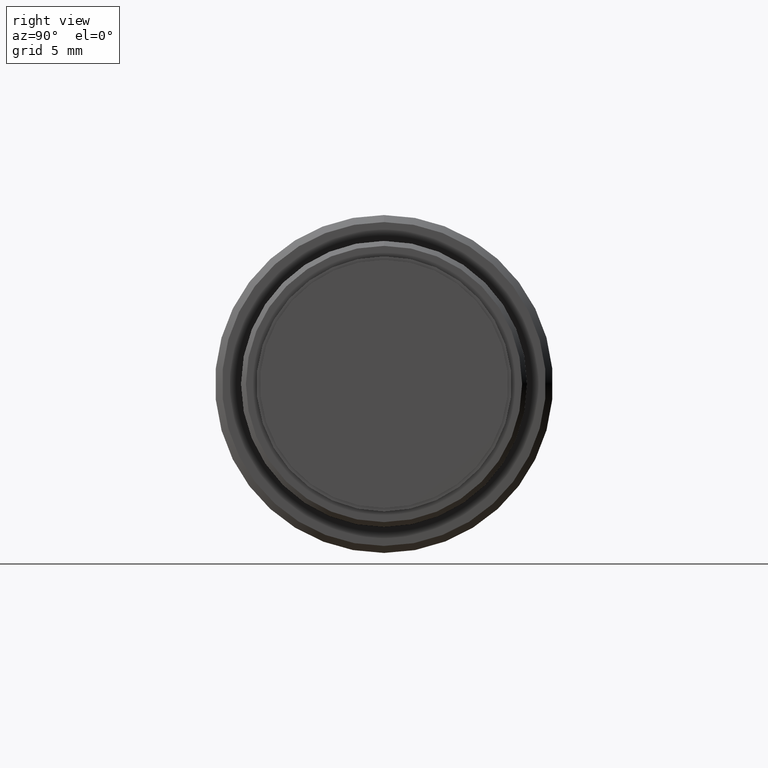
[diagram: clean part render]
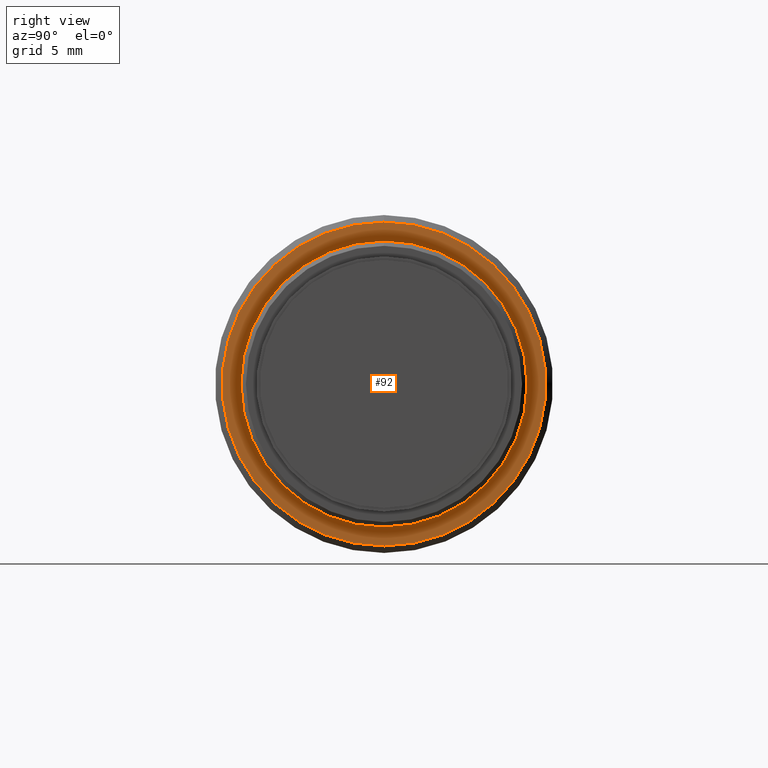
[diagram: same view with one face highlighted and labeled with its STEP entity id]
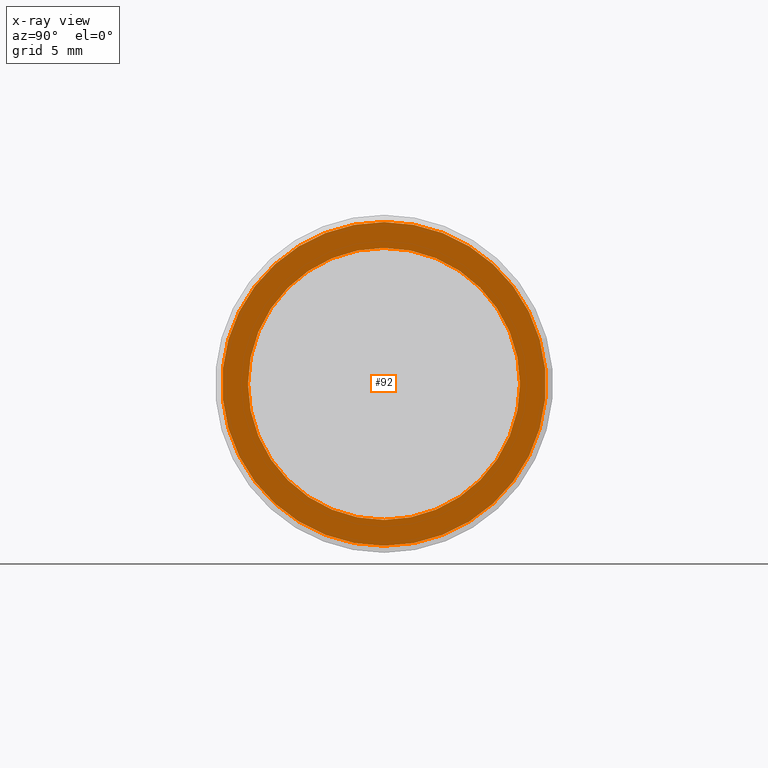
[diagram: x-ray of the same camera — body ghosted, the highlighted face saturated]
A machine part, right view. The second image highlights one B-rep face of the part: STEP entity #92.
The next image is the same camera in x-ray: the body ghosted, the highlighted face saturated — about 0% of this face is hidden behind the body in this view.
In plain terms, the highlighted planar face has unit normal (1, 0, 0).
Its self-contained STEP definition (entity closure, byte-faithful):
#34 = FACE_BOUND ( 'NONE', #731, .T. ) ;
#42 = DIRECTION ( 'NONE',  ( 1.000000000000000000, 0.000000000000000000, 0.000000000000000000 ) ) ;
#92 = ADVANCED_FACE ( 'NONE', ( #336, #34 ), #846, .T. ) ;
#146 = ORIENTED_EDGE ( 'NONE', *, *, #311, .T. ) ;
#217 = VERTEX_POINT ( 'NONE', #400 ) ;
#222 = CIRCLE ( 'NONE', #466, 11.50000000000000000 ) ;
#224 = CIRCLE ( 'NONE', #265, 9.660000000000000142 ) ;
#254 = CARTESIAN_POINT ( 'NONE',  ( -4.500000000000000000, 0.000000000000000000, 0.000000000000000000 ) ) ;
#259 = CARTESIAN_POINT ( 'NONE',  ( -4.500000000000000000, 11.50000000000000000, 0.000000000000000000 ) ) ;
#263 = ORIENTED_EDGE ( 'NONE', *, *, #705, .T. ) ;
#265 = AXIS2_PLACEMENT_3D ( 'NONE', #254, #625, #409 ) ;
#270 = DIRECTION ( 'NONE',  ( 0.000000000000000000, 1.000000000000000000, 0.000000000000000000 ) ) ;
#272 = DIRECTION ( 'NONE',  ( 0.000000000000000000, 0.000000000000000000, -1.000000000000000000 ) ) ;
#299 = DIRECTION ( 'NONE',  ( 1.000000000000000000, 0.000000000000000000, 0.000000000000000000 ) ) ;
#311 = EDGE_CURVE ( 'NONE', #734, #871, #222, .T. ) ;
#331 = CIRCLE ( 'NONE', #556, 9.660000000000000142 ) ;
#336 = FACE_OUTER_BOUND ( 'NONE', #372, .T. ) ;
#372 = EDGE_LOOP ( 'NONE', ( #263, #146 ) ) ;
#377 = AXIS2_PLACEMENT_3D ( 'NONE', #713, #563, #272 ) ;
#400 = CARTESIAN_POINT ( 'NONE',  ( -4.500000000000000000, 1.183008807976344079E-15, 9.660000000000000142 ) ) ;
#409 = DIRECTION ( 'NONE',  ( 0.000000000000000000, 0.000000000000000000, -1.000000000000000000 ) ) ;
#449 = CARTESIAN_POINT ( 'NONE',  ( -4.500000000000000000, 0.000000000000000000, 11.50000000000000000 ) ) ;
#466 = AXIS2_PLACEMENT_3D ( 'NONE', #950, #299, #514 ) ;
#490 = VERTEX_POINT ( 'NONE', #611 ) ;
#514 = DIRECTION ( 'NONE',  ( 0.000000000000000000, 0.000000000000000000, -1.000000000000000000 ) ) ;
#532 = ORIENTED_EDGE ( 'NONE', *, *, #628, .F. ) ;
#551 = CARTESIAN_POINT ( 'NONE',  ( -4.500000000000000000, 0.000000000000000000, 0.000000000000000000 ) ) ;
#556 = AXIS2_PLACEMENT_3D ( 'NONE', #551, #782, #770 ) ;
#560 = EDGE_CURVE ( 'NONE', #217, #490, #331, .T. ) ;
#563 = DIRECTION ( 'NONE',  ( 1.000000000000000000, 0.000000000000000000, 0.000000000000000000 ) ) ;
#611 = CARTESIAN_POINT ( 'NONE',  ( -4.500000000000000000, 0.000000000000000000, -9.660000000000000142 ) ) ;
#614 = AXIS2_PLACEMENT_3D ( 'NONE', #259, #42, #270 ) ;
#625 = DIRECTION ( 'NONE',  ( 1.000000000000000000, 0.000000000000000000, 0.000000000000000000 ) ) ;
#628 = EDGE_CURVE ( 'NONE', #490, #217, #224, .T. ) ;
#705 = EDGE_CURVE ( 'NONE', #871, #734, #789, .T. ) ;
#713 = CARTESIAN_POINT ( 'NONE',  ( -4.500000000000000000, 0.000000000000000000, 0.000000000000000000 ) ) ;
#731 = EDGE_LOOP ( 'NONE', ( #532, #813 ) ) ;
#734 = VERTEX_POINT ( 'NONE', #949 ) ;
#770 = DIRECTION ( 'NONE',  ( 0.000000000000000000, 0.000000000000000000, -1.000000000000000000 ) ) ;
#782 = DIRECTION ( 'NONE',  ( 1.000000000000000000, 0.000000000000000000, 0.000000000000000000 ) ) ;
#789 = CIRCLE ( 'NONE', #377, 11.50000000000000000 ) ;
#813 = ORIENTED_EDGE ( 'NONE', *, *, #560, .F. ) ;
#846 = PLANE ( 'NONE',  #614 ) ;
#871 = VERTEX_POINT ( 'NONE', #449 ) ;
#949 = CARTESIAN_POINT ( 'NONE',  ( -4.500000000000000000, 1.438959988998139963E-15, -11.50000000000000000 ) ) ;
#950 = CARTESIAN_POINT ( 'NONE',  ( -4.500000000000000000, 0.000000000000000000, 0.000000000000000000 ) ) ;